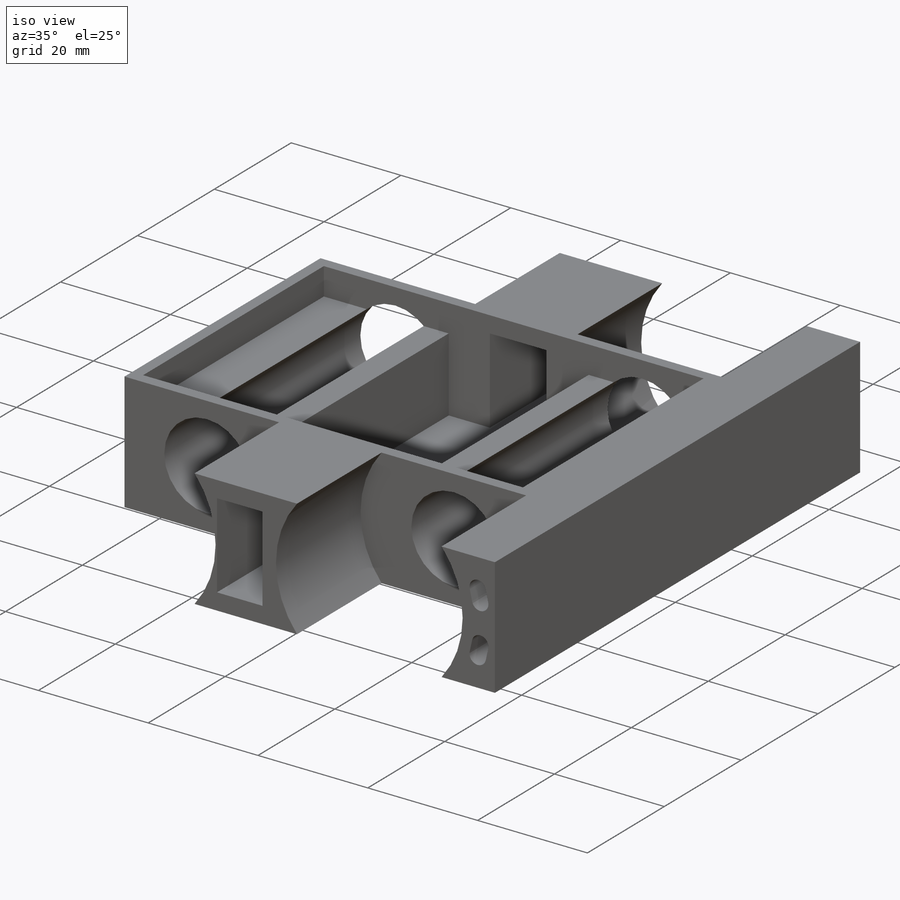
[diagram: iso view]
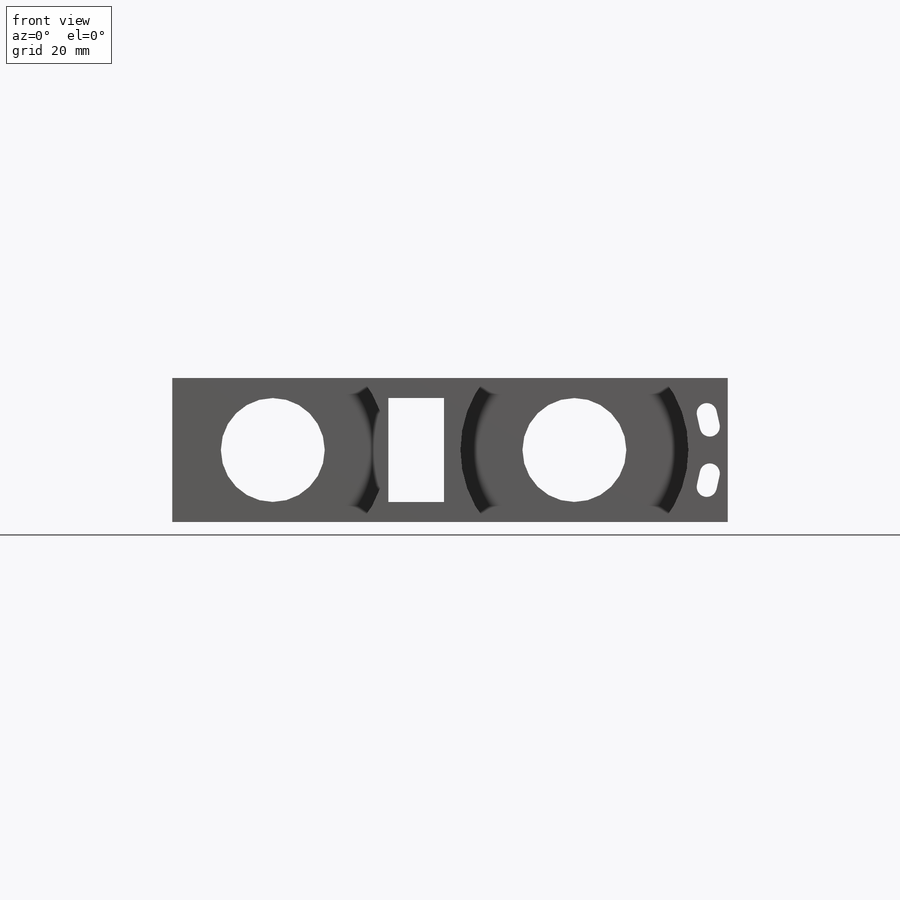
[diagram: front view]
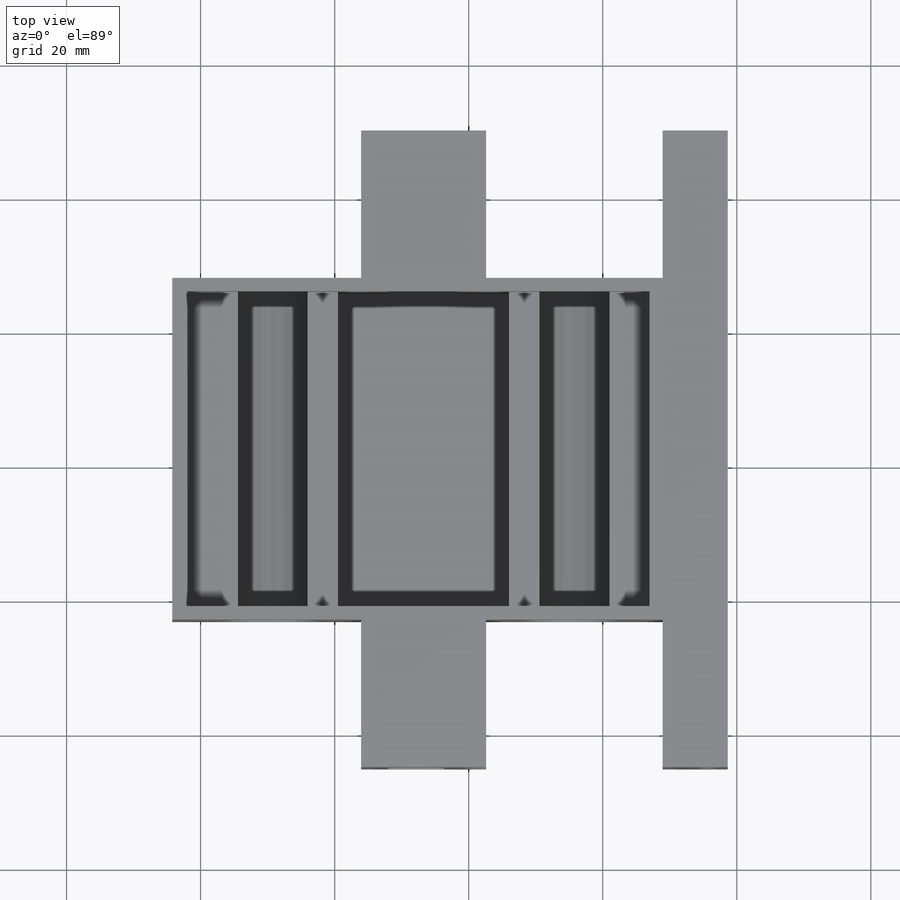
[diagram: top view]
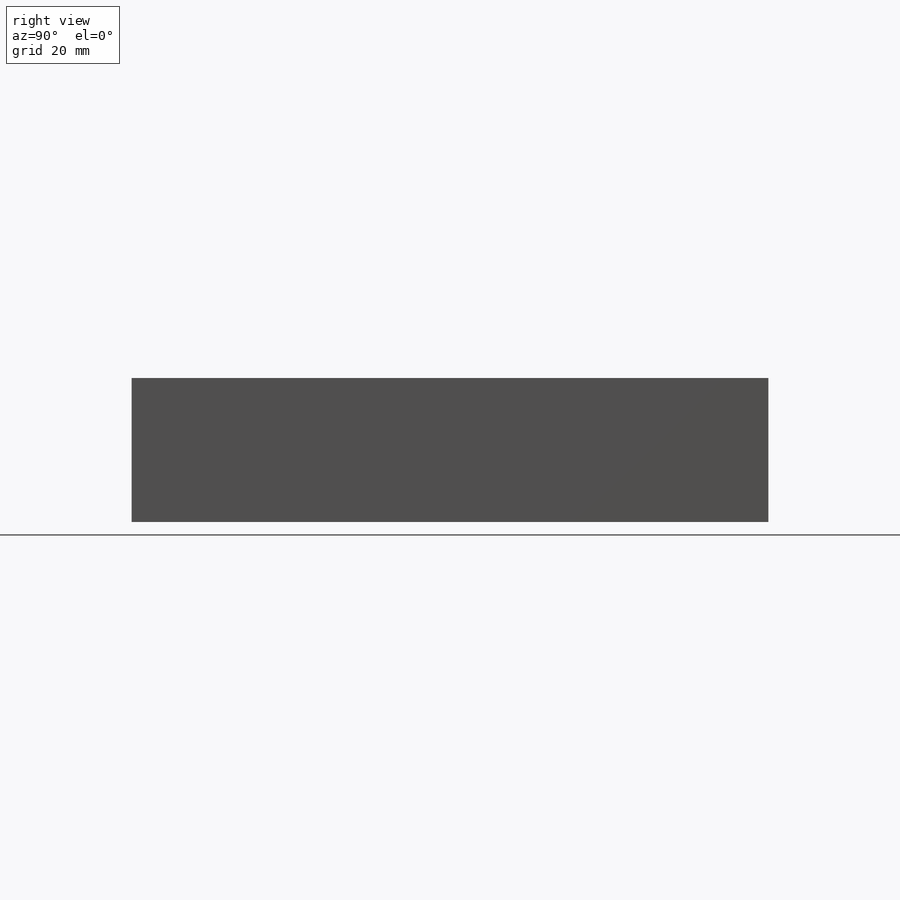
[diagram: right view]
SOLIDWORKS PART (.sldprt)
format: sldprt  version: not decoded by parser v0  size: 393,728 bytes
history: native  units: mm
features: sketch x14, cut_extrude x13, fillet x4, material x1, extrude x1 (+12 scaffold rows collapsed)
feature tree (45):
  scaffold x12  (default folders/planes/origin — collapsed)
  material  "Material <not specified>"
  sketch  "Sketch1"  dims[D1=95.0mm D2=95.0mm]
  extrude  "Boss-Extrude1"  Depth=25mm
  sketch  "Sketch2"  dims[c1.D1=47.0mm c1.D2=15.0mm c2.D1=45.0mm c2.D2=10.75mm c2.D3=15.0mm]
  cut_extrude  "Cut-Extrude2"  Depth=100mm
  sketch  "Sketch3"  dims[D1=45.0mm D2=10.75mm D3=10.75mm]
  cut_extrude  "Cut-Extrude3"  Depth=22mm
  sketch  "Sketch4"  dims[D1=~14.061754mm]
  cut_extrude  "Cut-Extrude4"  Depth=22mm
  sketch  "Sketch5"
  cut_extrude  "Cut-Extrude5"  Depth=22mm
  sketch  "Sketch6"
  cut_extrude  "Cut-Extrude6"  Depth=22mm
  sketch  "Sketch8"  dims[D1=3.5mm D2=10.75mm]
  cut_extrude  "Cut-Extrude7"  Depth=100mm
  sketch  "Sketch9"  dims[D1=8.3mm D2=15.5mm D3=3.0mm D4=17.25mm D5=19.45mm]
  cut_extrude  "Cut-Extrude11"  Depth=100mm
  sketch  "Sketch13"  dims[D1=4.0mm D2=4.0mm]
  cut_extrude  "Cut-Extrude12"  Depth=2mm
  sketch  "Sketch14"  dims[c1.D1=25.0mm c1.D2=2.0mm c1.D3=2.5mm c2.D1=2.0mm c2.D3=2.0mm c2.D4=2.0mm]
  cut_extrude  "Cut-Extrude14"  Depth=18.5mm
  sketch  "Sketch16"  dims[D1=2.0mm D2=2.0mm D3=2.0mm D4=2.0mm]
  cut_extrude  "Cut-Extrude15"  Depth=5mm
  sketch  "Sketch17"  dims[D1=2.0mm D2=2.0mm]
  cut_extrude  "Cut-Extrude16"  Depth=5mm
  sketch  "Sketch18"  dims[D1=44.0mm D2=38.0mm D3=2.0mm D4=5.0mm D5=2.0mm D6=5.0mm]
  cut_extrude  "Cut-Extrude17"  Depth=100mm
  fillet  "Fillet6"  Radius=1.5mm
  fillet  "Fillet7"  Radius=1.5mm
  fillet  "Fillet8"  Radius=1.5mm
  fillet  "Fillet9"  Radius=1.5mm
  sketch  "Sketch19"
  cut_extrude  "Cut-Extrude20"  Depth=100mm
decode coverage: 29 of 32 modeling features carry decoded parameters
note: ~ marks probable driven/reference dimensions
note: suppression state not decoded; provenance and decode notes live in map.json
